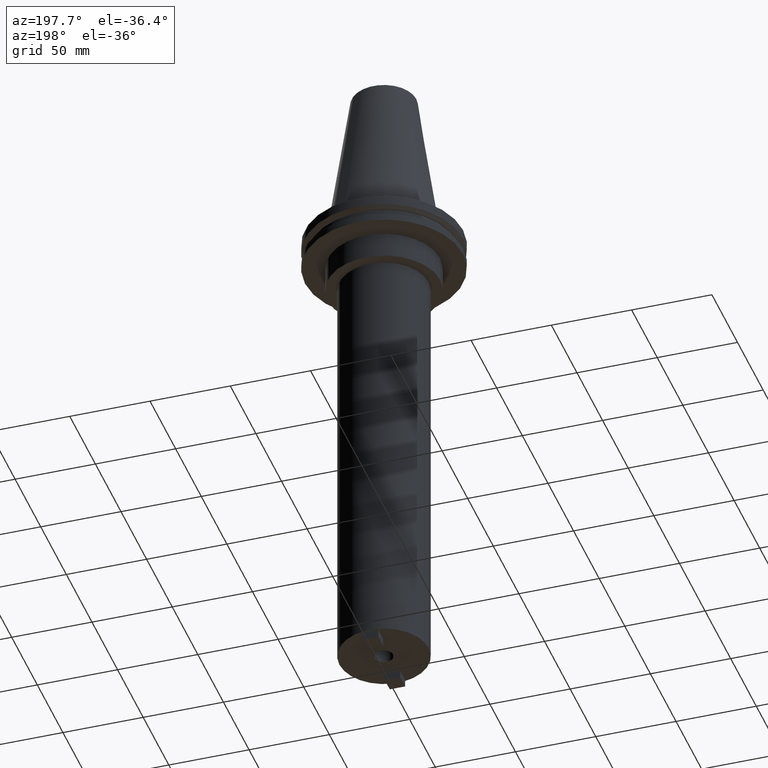
[diagram: clean part render]
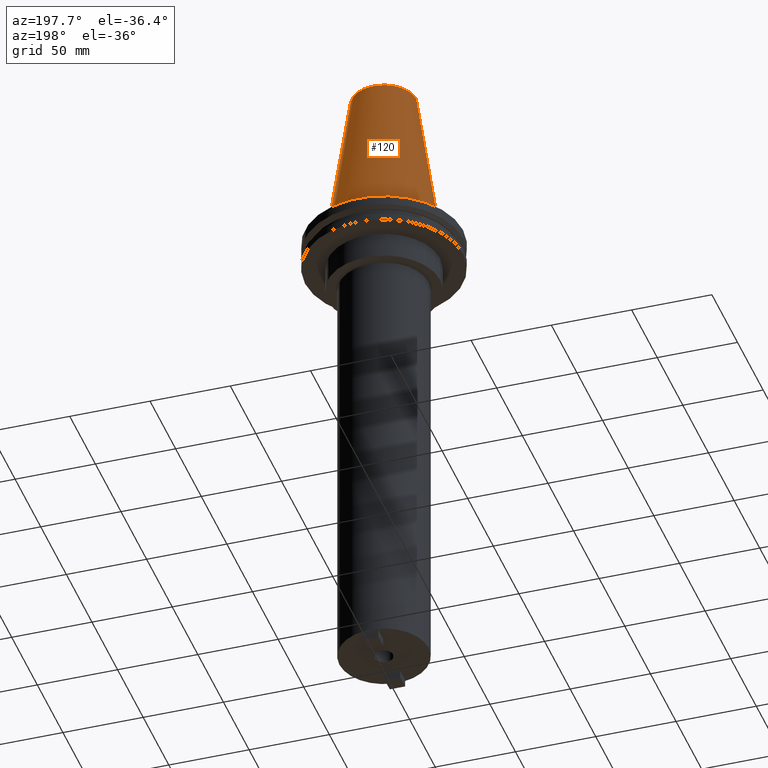
[diagram: same view with one face highlighted and labeled with its STEP entity id]
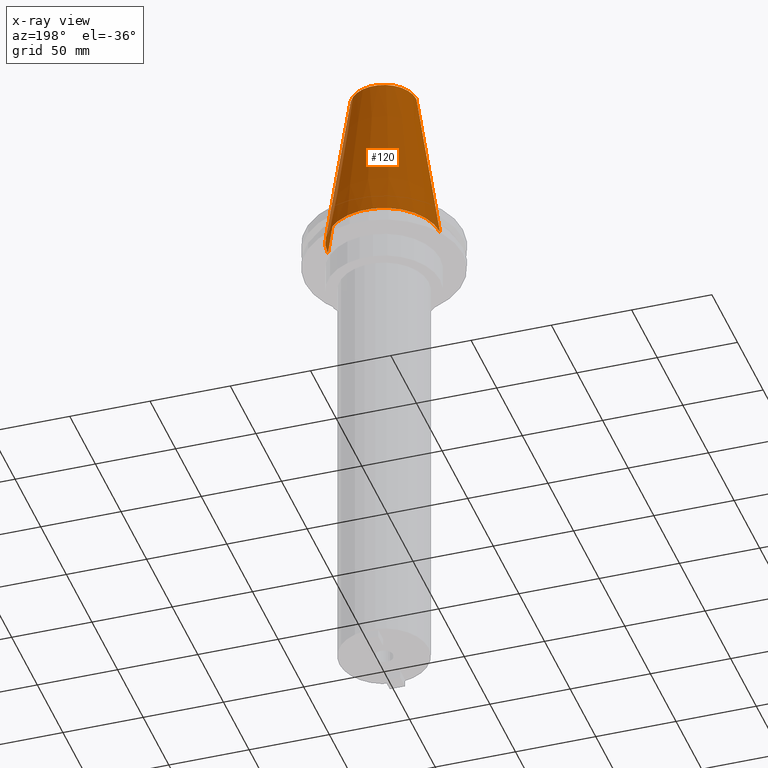
[diagram: x-ray of the same camera — body ghosted, the highlighted face saturated]
A machine part, auxiliary view. The second image highlights one B-rep face of the part: STEP entity #120.
The next image is the same camera in x-ray: the body ghosted, the highlighted face saturated — about 0% of this face is hidden behind the body in this view.
In plain terms, the highlighted conical surface has half-angle 8.297 deg.
Its self-contained STEP definition (entity closure, byte-faithful):
#21 = DIRECTION ( 'NONE',  ( -1.000000000000000000, 0.000000000000000000, 0.000000000000000000 ) ) ;
#61 = DIRECTION ( 'NONE',  ( -0.1443082272672999988, 0.000000000000000000, -0.9895327864921755756 ) ) ;
#86 = EDGE_CURVE ( 'NONE', #479, #114, #381, .T. ) ;
#96 = EDGE_LOOP ( 'NONE', ( #555, #143, #833, #443 ) ) ;
#114 = VERTEX_POINT ( 'NONE', #361 ) ;
#120 = ADVANCED_FACE ( 'NONE', ( #946 ), #872, .T. ) ;
#132 = DIRECTION ( 'NONE',  ( -0.000000000000000000, -0.000000000000000000, 1.000000000000000000 ) ) ;
#140 = CARTESIAN_POINT ( 'NONE',  ( -34.92499999999999005, 0.000000000000000000, 0.000000000000000000 ) ) ;
#143 = ORIENTED_EDGE ( 'NONE', *, *, #193, .T. ) ;
#157 = CARTESIAN_POINT ( 'NONE',  ( 20.10819343178871321, 3.369811209154858606E-15, 101.5999999999999801 ) ) ;
#177 = VERTEX_POINT ( 'NONE', #757 ) ;
#178 = CARTESIAN_POINT ( 'NONE',  ( 0.000000000000000000, 0.000000000000000000, 101.5999999999999801 ) ) ;
#193 = EDGE_CURVE ( 'NONE', #479, #259, #432, .T. ) ;
#259 = VERTEX_POINT ( 'NONE', #618 ) ;
#272 = DIRECTION ( 'NONE',  ( 0.000000000000000000, 0.000000000000000000, -1.000000000000000000 ) ) ;
#287 = EDGE_CURVE ( 'NONE', #259, #177, #295, .T. ) ;
#295 = CIRCLE ( 'NONE', #769, 34.92499999999999005 ) ;
#341 = DIRECTION ( 'NONE',  ( 1.000000000000000000, 0.000000000000000000, 0.000000000000000000 ) ) ;
#361 = CARTESIAN_POINT ( 'NONE',  ( -20.10819343178871321, 0.000000000000000000, 101.5999999999999801 ) ) ;
#381 = CIRCLE ( 'NONE', #630, 20.10819343178871321 ) ;
#432 = LINE ( 'NONE', #626, #650 ) ;
#443 = ORIENTED_EDGE ( 'NONE', *, *, #521, .F. ) ;
#459 = CARTESIAN_POINT ( 'NONE',  ( 0.000000000000000000, 0.000000000000000000, 0.000000000000000000 ) ) ;
#479 = VERTEX_POINT ( 'NONE', #157 ) ;
#512 = CARTESIAN_POINT ( 'NONE',  ( 0.000000000000000000, 0.000000000000000000, 0.000000000000000000 ) ) ;
#521 = EDGE_CURVE ( 'NONE', #114, #177, #808, .T. ) ;
#555 = ORIENTED_EDGE ( 'NONE', *, *, #86, .F. ) ;
#618 = CARTESIAN_POINT ( 'NONE',  ( 34.92499999999999005, 4.277078946022130098E-15, 0.000000000000000000 ) ) ;
#626 = CARTESIAN_POINT ( 'NONE',  ( 34.92499999999999005, 4.277078946022130098E-15, 0.000000000000000000 ) ) ;
#630 = AXIS2_PLACEMENT_3D ( 'NONE', #178, #932, #341 ) ;
#636 = DIRECTION ( 'NONE',  ( 1.000000000000000000, 0.000000000000000000, 0.000000000000000000 ) ) ;
#641 = DIRECTION ( 'NONE',  ( 0.1443082272672999988, 1.767266086135277066E-17, -0.9895327864921755756 ) ) ;
#650 = VECTOR ( 'NONE', #641, 999.9999999999998863 ) ;
#757 = CARTESIAN_POINT ( 'NONE',  ( -34.92499999999999005, 0.000000000000000000, 0.000000000000000000 ) ) ;
#769 = AXIS2_PLACEMENT_3D ( 'NONE', #459, #132, #636 ) ;
#808 = LINE ( 'NONE', #140, #822 ) ;
#822 = VECTOR ( 'NONE', #61, 999.9999999999998863 ) ;
#833 = ORIENTED_EDGE ( 'NONE', *, *, #287, .T. ) ;
#872 = CONICAL_SURFACE ( 'NONE', #981, 34.92499999999999005, 0.1448138465474119452 ) ;
#932 = DIRECTION ( 'NONE',  ( -0.000000000000000000, -0.000000000000000000, 1.000000000000000000 ) ) ;
#946 = FACE_OUTER_BOUND ( 'NONE', #96, .T. ) ;
#981 = AXIS2_PLACEMENT_3D ( 'NONE', #512, #272, #21 ) ;